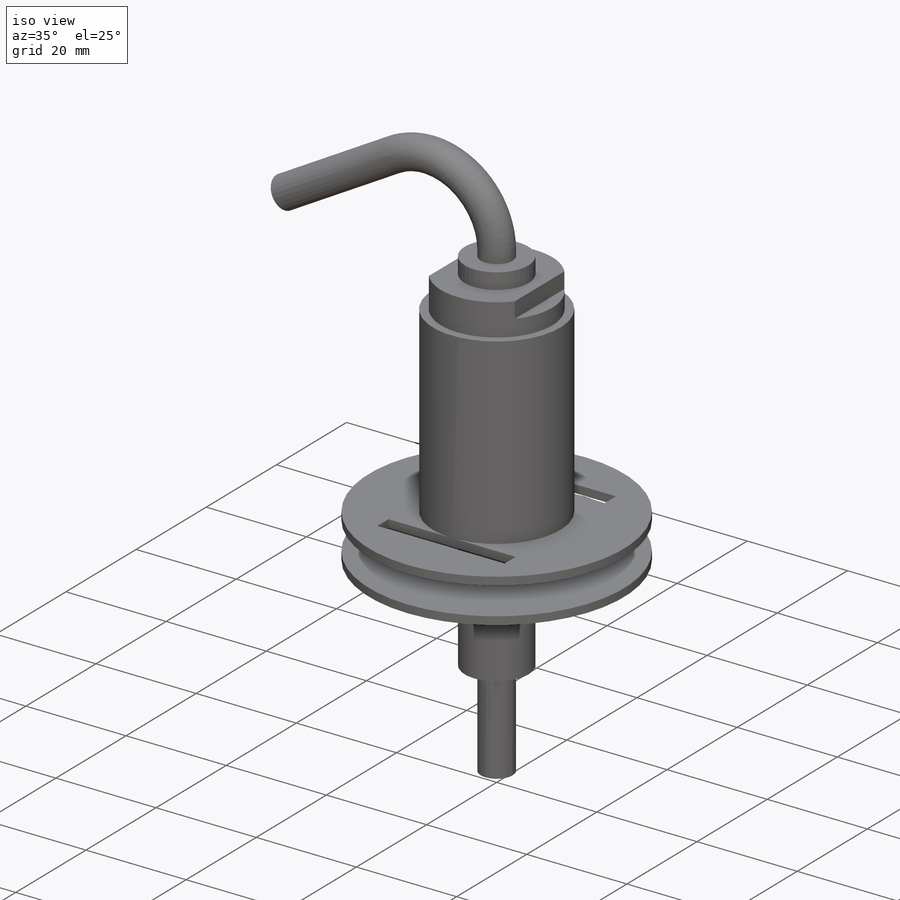
[diagram: iso view]
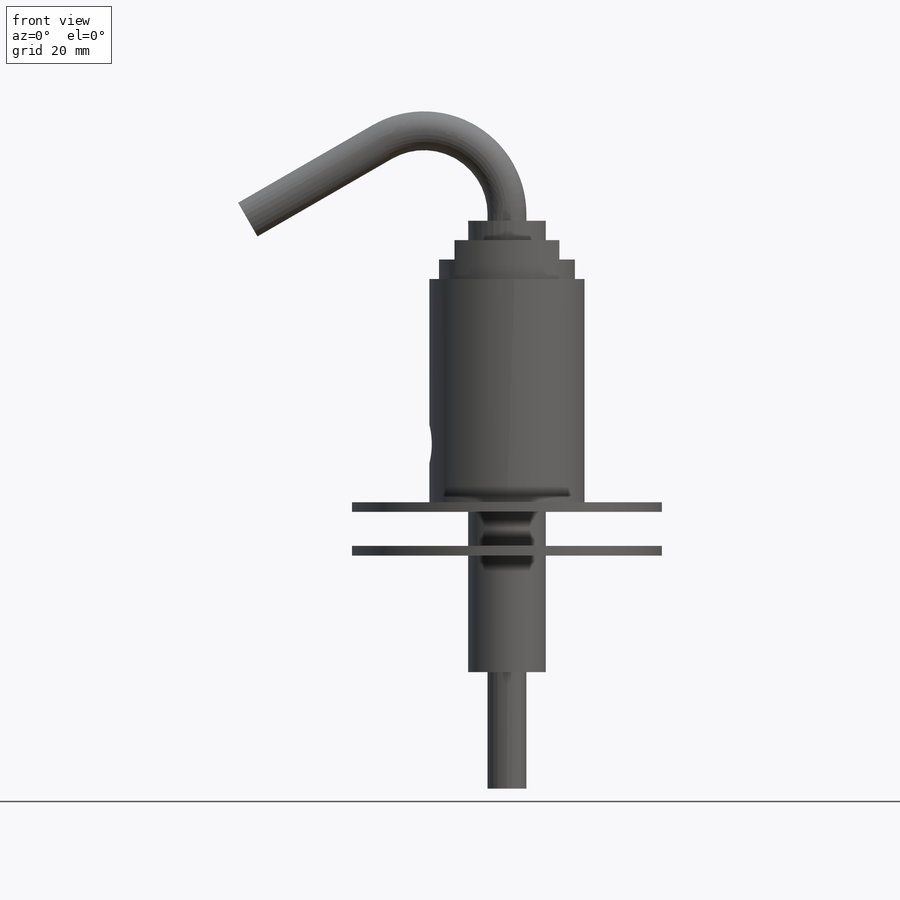
[diagram: front view]
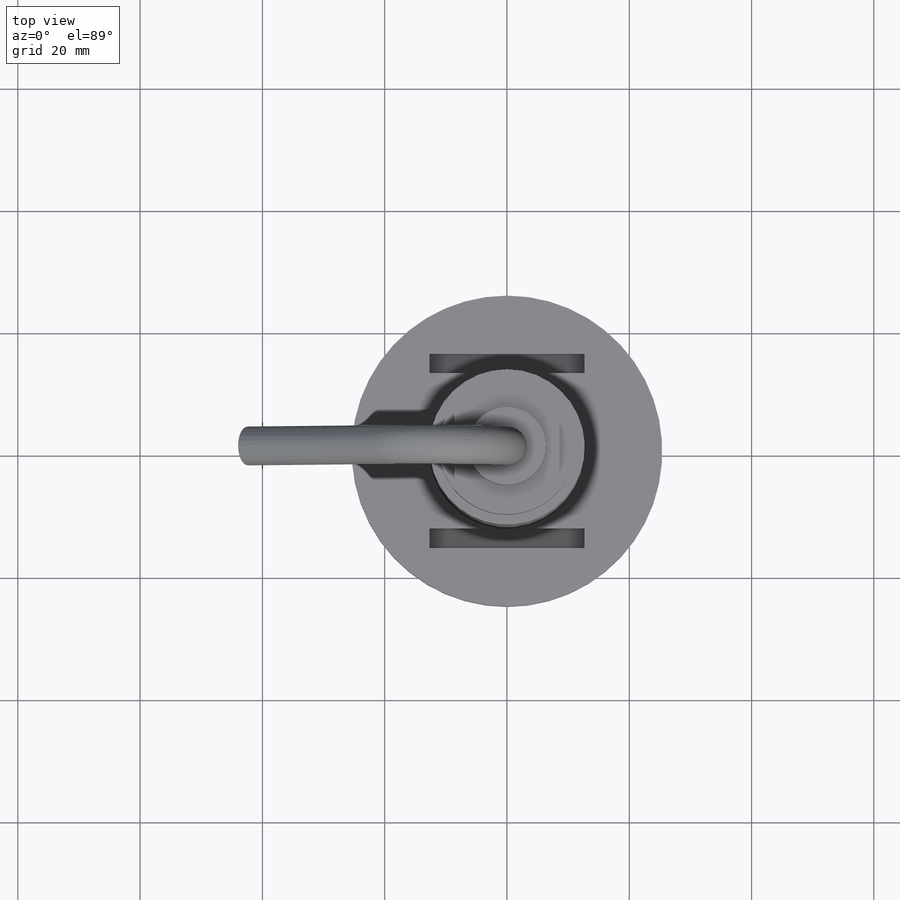
[diagram: top view]
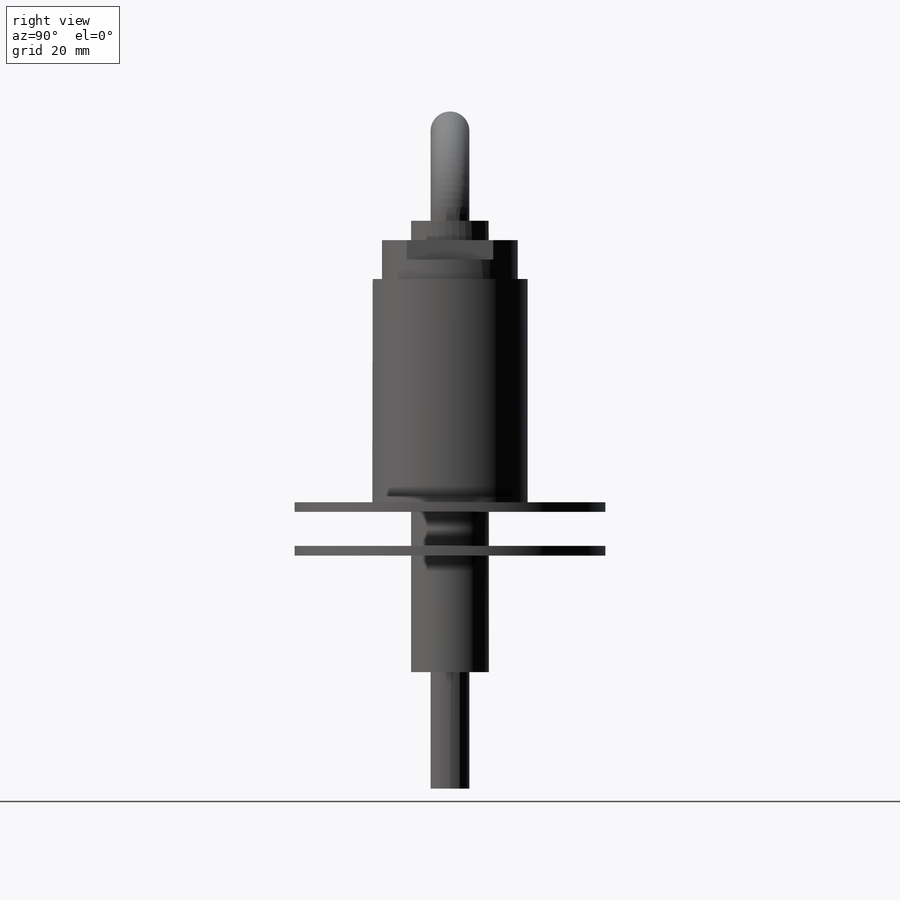
[diagram: right view]
SOLIDWORKS PART (.sldprt)
format: sldprt  version: not decoded by parser v0  size: 405,504 bytes
history: native  units: mm
features: sketch x11, revolve x4, cut_extrude x3, material x1, shell x1, sweep x1, extrude x1, mirror x1, fillet x1 (+12 scaffold rows collapsed)
feature tree (36):
  scaffold x12  (default folders/planes/origin — collapsed)
  material  "Material <not specified>"
  sketch  "Sketch1"  dims[D1=3.175mm D2=93.98mm]
  revolve  "Revolve1"  Angle=360deg
  shell  "Shell1"  Thickness=1.016mm
  sketch  "Sketch2"  dims[c1.D1=1.524mm c1.D2=19.05mm c1.D3=19.05mm c1.D4=19.05mm c1.D5=6.35mm c1.D6=~5.55625mm c1.D7=38.1mm c1.D8=1.5875mm c1.D9=1.5875mm c1.D10=12.7mm c1.D11=4.7625mm c1.D12=4.699mm c2.D12=135.0deg c2.D13=14.2875mm c3.D12=~4.365625mm c3.D11=9.525mm c4.D12=4.699mm c5.D12=135.0deg]
  revolve  "Revolve2"  Angle=360deg
  sketch  "Sketch3"  dims[c1.D1=~2.723706mm c2.D1=~125.478508deg c3.D1=~2.723706mm c4.D1=~125.478508deg c5.D1=~16.06504mm c6.D1=135.0deg c6.D2=9.525mm c6.D3=6.35mm c6.D4=3.175mm c6.D5=1.5875mm c7.D1=3.175mm]
  revolve  "Revolve3"  Angle=360deg
  sketch  "Sketch4"  dims[D1=1.5875mm D2=6.35mm]
  revolve  "Revolve4"  Angle=360deg
  sketch  "Sketch5"  dims[D1=2.54mm D2=3.175mm]
  cut_extrude  "Cut-Extrude1"  Depth=33.02mm
  sketch  "Sketch6"  dims[c1.D1=63.5mm c1.D2=12.7mm c2.D1=67.31mm c2.D2=~18.01756mm c3.D2=~31.801965deg c4.D2=~21.863166mm c5.D2=60.0deg]
  sketch  "Sketch7"
  sweep  "Sweep1"
  sketch  "Sketch8"  dims[D1=0.0mm]
  extrude  "Boss-Extrude1"  Depth=25.4mm
  sketch  "Sketch9"  dims[D1=6.35mm D2=9.525mm]
  cut_extrude  "Cut-Extrude2"  Depth=25.4mm
  sketch  "Sketch10"  dims[D1=6.35mm D2=3.175mm D3=3.175mm]
  cut_extrude  "Cut-Extrude3"  Depth=25.4mm
  mirror  "Mirror1"
  fillet  "Fillet1"  Radius=1.27mm
  sketch  "Sketch11"
decode coverage: 19 of 23 modeling features carry decoded parameters
note: ~ marks probable driven/reference dimensions
note: suppression state not decoded; provenance and decode notes live in map.json
